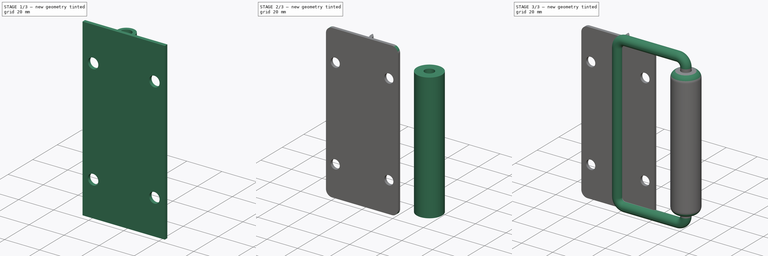
[diagram: build sequence overview — one tinted view per stage of 3, left to right]
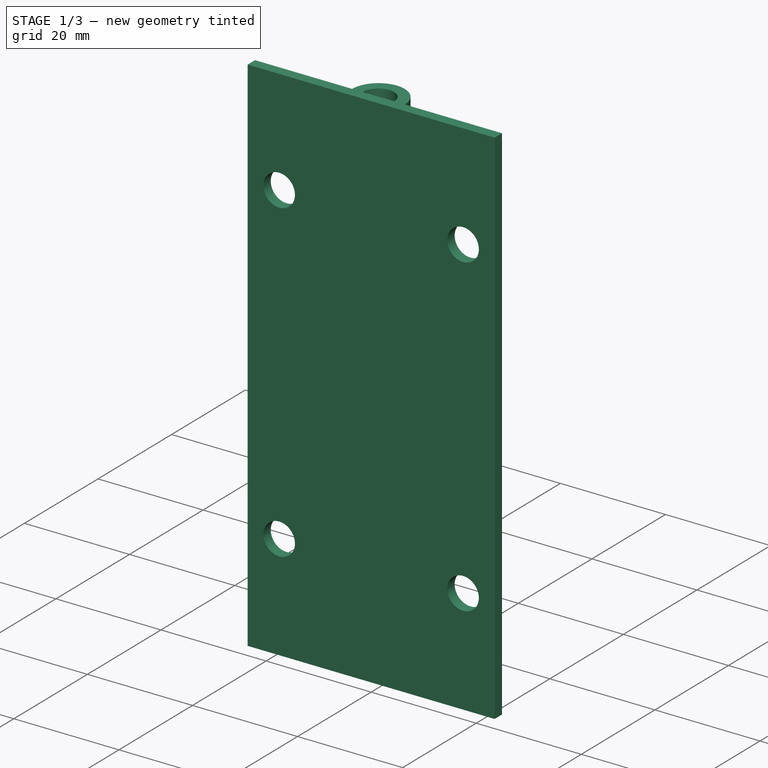
[diagram: stage 1 of 3 — iso view after this stage's code; geometry added in this stage tinted green]
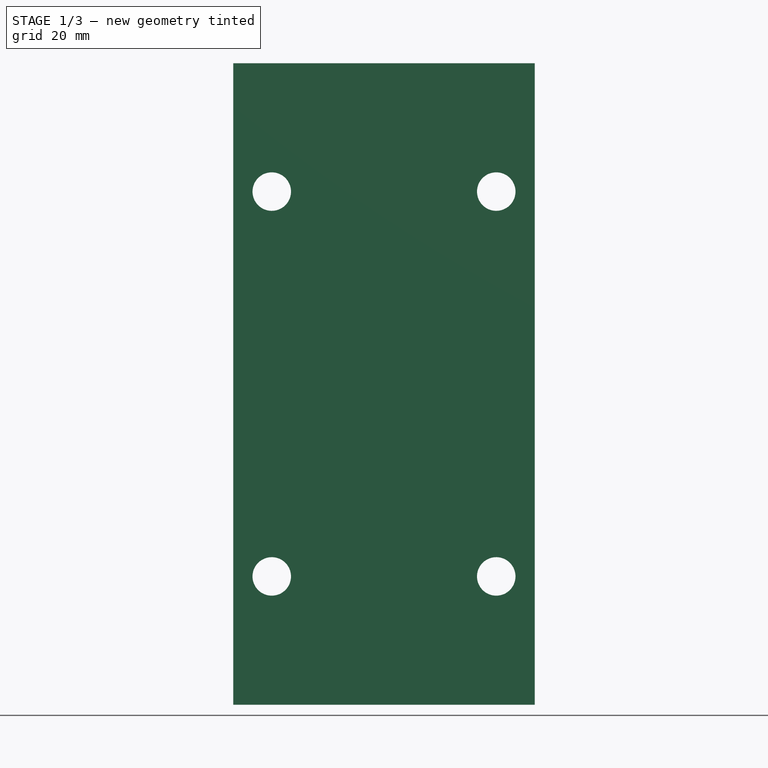
[diagram: stage 1 of 3 — front view after this stage's code; geometry added in this stage tinted green]
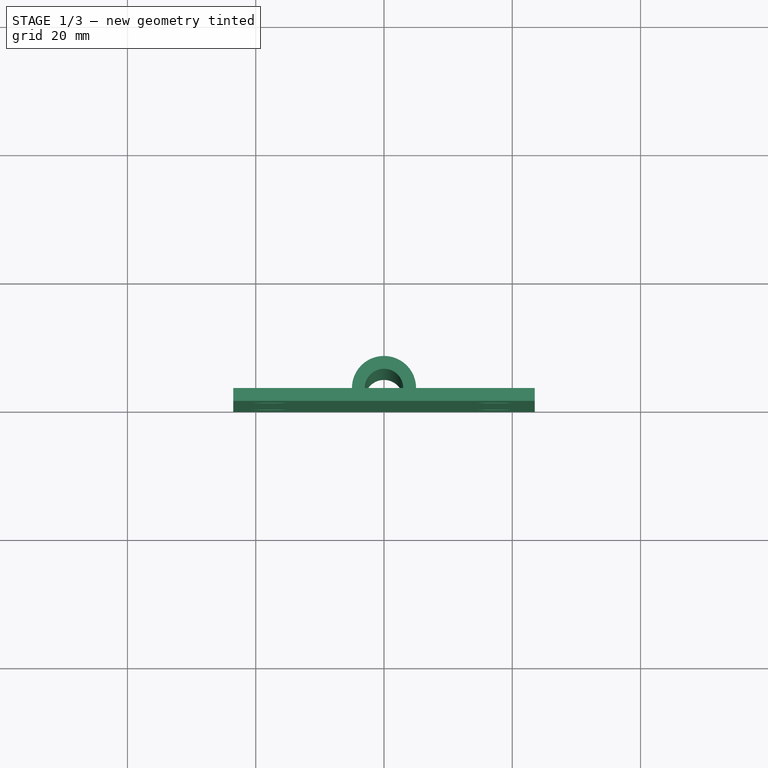
[diagram: stage 1 of 3 — top view after this stage's code; geometry added in this stage tinted green]
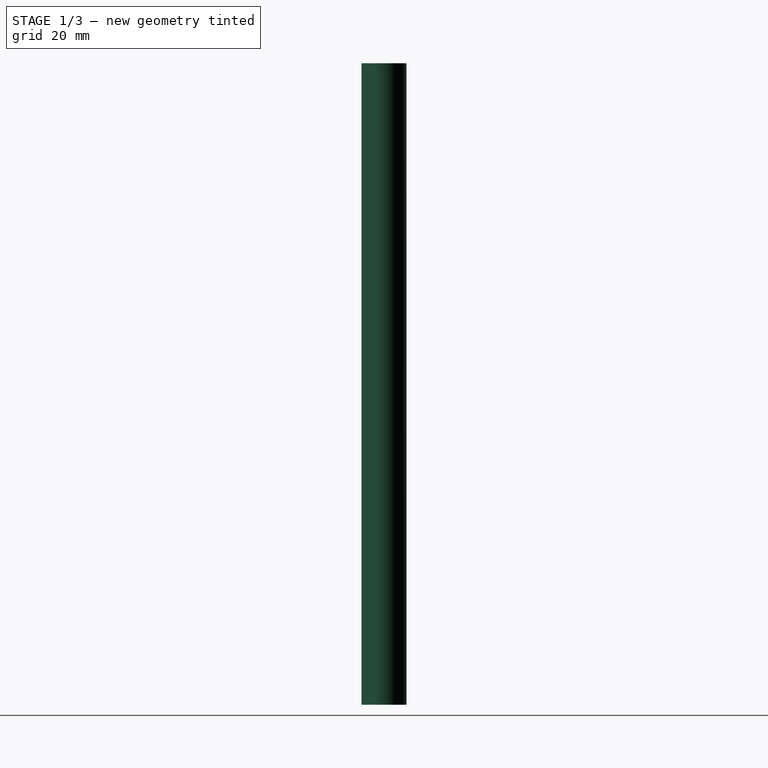
[diagram: stage 1 of 3 — right view after this stage's code; geometry added in this stage tinted green]
FCSTD DOCUMENT  (FreeCAD 1.0R39319 (Git))
Label: Handle__SS-Carry 100mm
License: All rights reserved
LicenseURL: https://en.wikipedia.org/wiki/All_rights_reserved
objects: Sketcher::SketchObject×6, PartDesign::Body×3, PartDesign::Pad×2, PartDesign::Fillet×2, PartDesign::Pocket×2, PartDesign::AdditivePipe×1
note: 36 computed .brp shape members not serialized (recipe doc carries the construction recipe); baked Part::Feature solids carry a one-line shape summary decoded from their .brp

FEATURE [PartDesign::Body] Body002
  AllowCompound = false
  Group = -> [Sketch003,Pad001,Fillet]
  Origin = -> Origin002
  Placement = pos=(0,-3,0) rot=(0,0,-1;0.436332rad)
  Tip = -> Fillet
FEATURE [Sketcher::SketchObject] Sketch
  ArcFitTolerance = 1e-06
  AttachmentSupport = -> [XY_Plane]
  FullyConstrained = true
  MakeInternals = false
  MapMode = 5
  sketch-geometry (8):
    g0: LineSegment StartX=-23.5 StartY=0 StartZ=0 EndX=23.5 EndY=0 EndZ=0
    g1: LineSegment StartX=23.5 StartY=0 StartZ=0 EndX=23.5 EndY=2 EndZ=0
    g2: LineSegment StartX=-23.5 StartY=2 StartZ=0 EndX=-23.5 EndY=0 EndZ=0
    g3: ArcOfCircle CenterX=0 CenterY=2 CenterZ=0 NormalX=0 NormalY=0 NormalZ=1 AngleXU=0 Radius=5 StartAngle=0 EndAngle=3.14159
    g4: LineSegment StartX=5 StartY=2 StartZ=0 EndX=23.5 EndY=2 EndZ=0
    g5: LineSegment StartX=-5 StartY=2 StartZ=0 EndX=-23.5 EndY=2 EndZ=0
    g6: LineSegment StartX=-3 StartY=2 StartZ=0 EndX=3 EndY=2 EndZ=0
    g7: ArcOfCircle CenterX=0 CenterY=2 CenterZ=0 NormalX=0 NormalY=0 NormalZ=1 AngleXU=0 Radius=3 StartAngle=0 EndAngle=3.14159
  constraints (24):
    c: Coincident(g0,g1)
    c: Coincident(g2,g0)
    c: Horizontal(g0)
    c: Vertical(g1)
    c: Vertical(g2)
    c: PointOnObject(g0,g-1)
    c: Symmetric(g1,g2,g-2)
    c: DistanceY(g2,g2) = 2
    c: DistanceX(g0,g0) = 47
    c: PointOnObject(g3,g-2)
    c: Coincident(g4,g3)
    c: Coincident(g4,g1)
    c: Horizontal(g4)
    c: Coincident(g5,g3)
    c: Coincident(g5,g2)
    c: Horizontal(g5)
    c: Radius(g3) = 5
    c: Horizontal(g6)
    c: Horizontal(g3,g3)
    c: PointOnObject(g7,g6)
    c: Coincident(g7,g6)
    c: Coincident(g7,g6)
    c: Radius(g7) = 3
    c: Coincident(g7,g3)
FEATURE [PartDesign::Pad] Pad
  Direction = (0,0,1)
  Length = 100
  Length2 = 10
  Midplane = true
  Profile = -> Sketch
  ReferenceAxis = -> Sketch [N_Axis]
  Refine = true
  Suppressed = false
  Type = 0
FEATURE [Sketcher::SketchObject] Sketch004
  ArcFitTolerance = 1e-06
  AttachmentSupport = -> [Pad]
  ExternalGeometry = -> [Pad]
  FullyConstrained = true
  MakeInternals = false
  MapMode = 5
  Placement = pos=(0,2,0) rot=(0,0.707107,0.707107;3.14159rad)
  sketch-geometry (8):
    g0: Circle CenterX=17.5 CenterY=30 CenterZ=0 NormalX=0 NormalY=0 NormalZ=1 AngleXU=0 Radius=3
    g1: Circle CenterX=-17.5 CenterY=30 CenterZ=0 NormalX=0 NormalY=0 NormalZ=1 AngleXU=0 Radius=3
    g2: Circle CenterX=17.5 CenterY=-30 CenterZ=0 NormalX=0 NormalY=0 NormalZ=1 AngleXU=0 Radius=3
    g3: Circle CenterX=-17.5 CenterY=-30 CenterZ=0 NormalX=0 NormalY=0 NormalZ=1 AngleXU=0 Radius=3
    g4: LineSegment [constr] StartX=-17.5 StartY=30 StartZ=0 EndX=-17.5 EndY=-30 EndZ=0
    g5: LineSegment [constr] StartX=-17.5 StartY=-30 StartZ=0 EndX=17.5 EndY=-30 EndZ=0
    g6: LineSegment [constr] StartX=17.5 StartY=-30 StartZ=0 EndX=17.5 EndY=30 EndZ=0
    g7: LineSegment [constr] StartX=17.5 StartY=30 StartZ=0 EndX=-17.5 EndY=30 EndZ=0
  constraints (19):
    c: Coincident(g4,g5)
    c: Coincident(g5,g6)
    c: Coincident(g6,g7)
    c: Coincident(g7,g4)
    c: Vertical(g4)
    c: Vertical(g6)
    c: Horizontal(g5)
    c: Horizontal(g7)
    c: Coincident(g4,g1)
    c: Coincident(g5,g2)
    c: Coincident(g0,g6)
    c: Coincident(g3,g4)
    c: Symmetric(g2,g1,g-1)
    c: Equal(g0,g2)
    c: Equal(g2,g3)
    c: Equal(g3,g1)
    c: Diameter(g0) = 6
    c: DistanceY(g6,g6) = 60
    c: DistanceX(g7,g7) = 35
FEATURE [PartDesign::Pocket] Pocket
  BaseFeature = -> Pad
  Direction = (0,-1,2e-16)
  Length = 5
  Length2 = 5
  Profile = -> Sketch004
  ReferenceAxis = -> Sketch004 [N_Axis]
  Refine = true
  Suppressed = false
  Type = 2
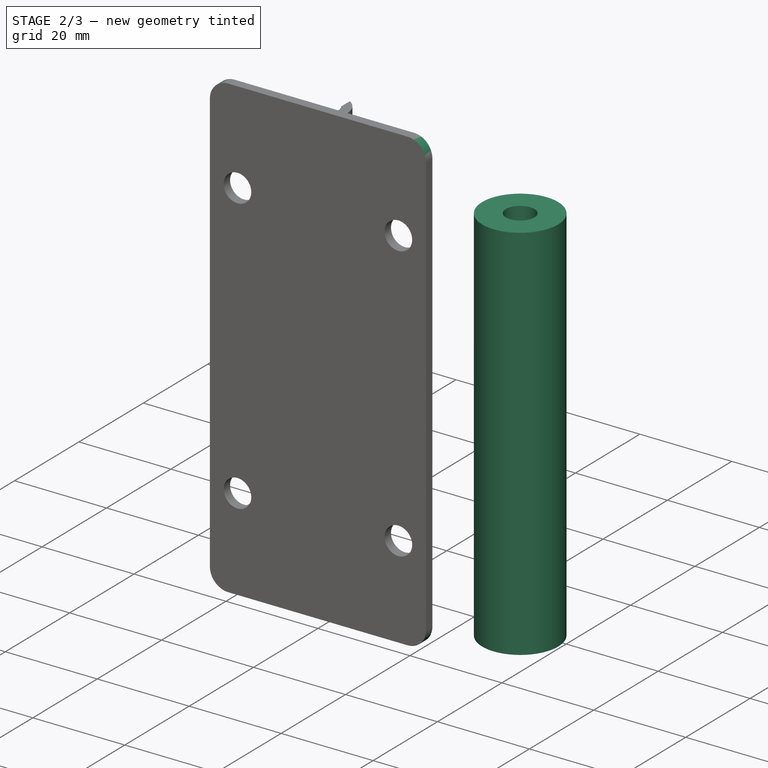
[diagram: stage 2 of 3 — iso view after this stage's code; geometry added in this stage tinted green]
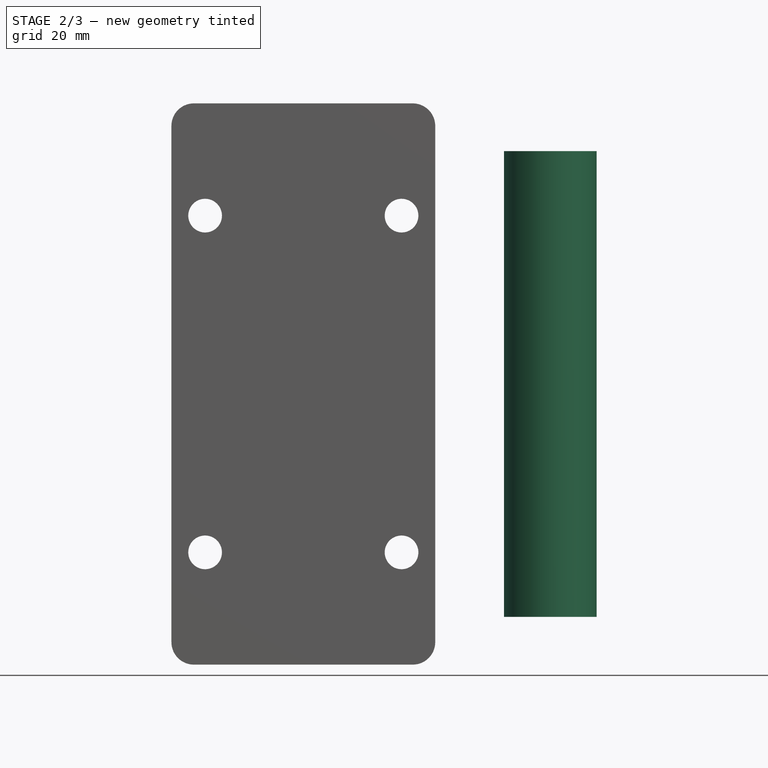
[diagram: stage 2 of 3 — front view after this stage's code; geometry added in this stage tinted green]
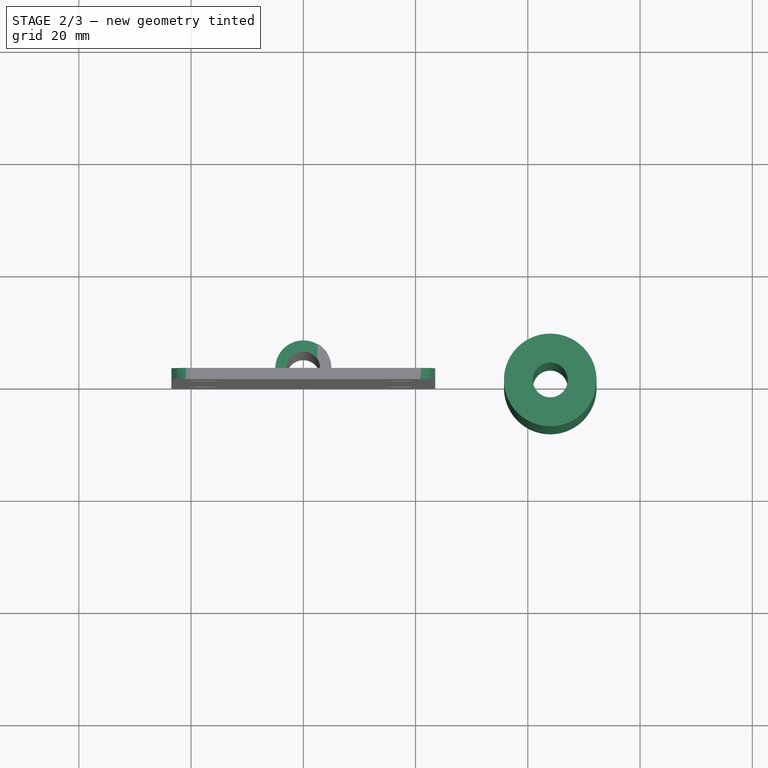
[diagram: stage 2 of 3 — top view after this stage's code; geometry added in this stage tinted green]
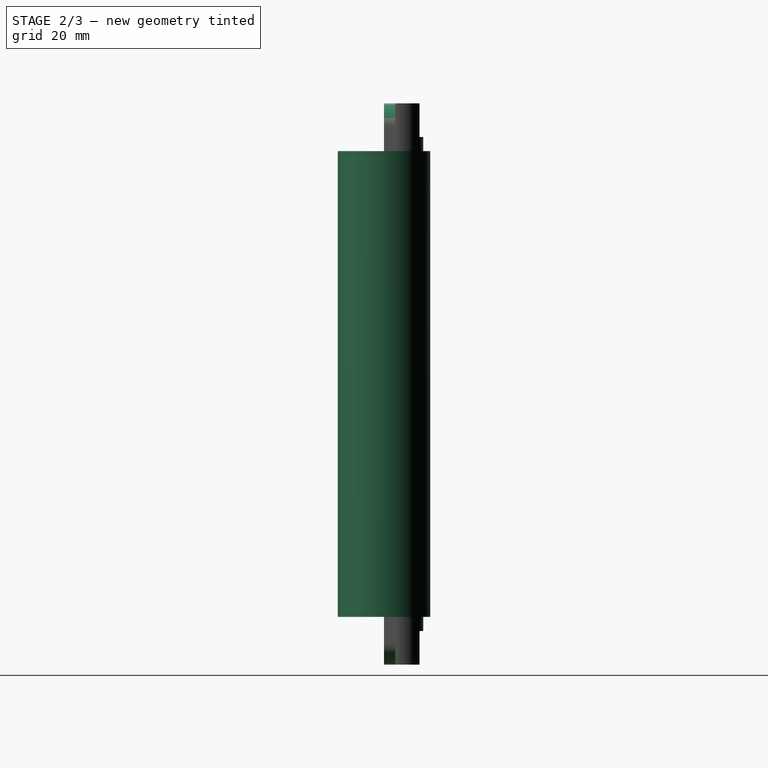
[diagram: stage 2 of 3 — right view after this stage's code; geometry added in this stage tinted green]
FEATURE [PartDesign::Body] Body001
  AllowCompound = false
  Group = -> [Sketch001,Sketch002,AdditivePipe]
  Origin = -> Origin001
  Placement = pos=(-1.8e-15,-3,0) rot=(0,0,-1;0.436332rad)
  Tip = -> AdditivePipe
FEATURE [Sketcher::SketchObject] Sketch003
  ArcFitTolerance = 1e-06
  AttachmentSupport = -> [XY_Plane002]
  FullyConstrained = true
  MakeInternals = false
  MapMode = 5
  sketch-geometry (2):
    g0: Circle CenterX=44 CenterY=0 CenterZ=0 NormalX=0 NormalY=0 NormalZ=1 AngleXU=0 Radius=8.25
    g1: Circle CenterX=44 CenterY=0 CenterZ=0 NormalX=0 NormalY=0 NormalZ=1 AngleXU=0 Radius=3.1
  constraints (5):
    c: PointOnObject(g0,g-1)
    c: DistanceX(g-1,g0) = 44
    c: Diameter(g0) = 16.5
    c: Coincident(g1,g0)
    c: Diameter(g1) = 6.2
FEATURE [PartDesign::Pad] Pad001
  Direction = (0,0,1)
  Length = 83
  Length2 = 10
  Midplane = true
  Profile = -> Sketch003
  ReferenceAxis = -> Sketch003 [N_Axis]
  Refine = true
  Suppressed = false
  Type = 0
FEATURE [Sketcher::SketchObject] Sketch005
  ArcFitTolerance = 1e-06
  AttachmentSupport = -> [Pocket]
  ExternalGeometry = -> [Pocket]
  FullyConstrained = true
  MakeInternals = false
  MapMode = 5
  Placement = pos=(0,2,0) rot=(0,0.707107,0.707107;3.14159rad)
  sketch-geometry (8):
    g0: LineSegment StartX=23.5 StartY=50 StartZ=0 EndX=-2.5 EndY=50 EndZ=0
    g1: LineSegment StartX=-2.5 StartY=50 StartZ=0 EndX=-2.5 EndY=44 EndZ=0
    g2: LineSegment StartX=-2.5 StartY=44 StartZ=0 EndX=23.5 EndY=44 EndZ=0
    g3: LineSegment StartX=23.5 StartY=44 StartZ=0 EndX=23.5 EndY=50 EndZ=0
    g4: LineSegment StartX=23.5 StartY=-50 StartZ=0 EndX=23.5 EndY=-44 EndZ=0
    g5: LineSegment StartX=23.5 StartY=-44 StartZ=0 EndX=-2.5 EndY=-44 EndZ=0
    g6: LineSegment StartX=-2.5 StartY=-44 StartZ=0 EndX=-2.5 EndY=-50 EndZ=0
    g7: LineSegment StartX=-2.5 StartY=-50 StartZ=0 EndX=23.5 EndY=-50 EndZ=0
  constraints (22):
    c: Coincident(g0,g1)
    c: Coincident(g1,g2)
    c: Coincident(g2,g3)
    c: Coincident(g3,g0)
    c: Horizontal(g0)
    c: Horizontal(g2)
    c: Vertical(g1)
    c: Vertical(g3)
    c: Coincident(g0,g-3)
    c: Coincident(g4,g5)
    c: Coincident(g5,g6)
    c: Coincident(g6,g7)
    c: Coincident(g7,g4)
    c: Vertical(g4)
    c: Vertical(g6)
    c: Horizontal(g5)
    c: Horizontal(g7)
    c: Coincident(g4,g-3)
    c: DistanceX(g0,g0) = 26
    c: DistanceY(g3,g3) = 6
    c: Equal(g3,g4)
    c: Equal(g5,g2)
FEATURE [PartDesign::Pocket] Pocket001
  BaseFeature = -> Pocket
  Direction = (0,-1,2e-16)
  Length = 5
  Length2 = 5
  Profile = -> Sketch005
  ReferenceAxis = -> Sketch005 [N_Axis]
  Refine = true
  Reversed = true
  Suppressed = false
  Type = 1
FEATURE [PartDesign::Fillet] Fillet001
  Base = -> Pocket001 [Edge10,Edge17,Edge23,Edge11]
  BaseFeature = -> Pocket001
  Radius = 4
  Refine = true
  SupportTransform = false
  Suppressed = false
  UseAllEdges = false
FEATURE [PartDesign::Body] Body
  AllowCompound = false
  Group = -> [Sketch,Pad,Sketch004,Pocket,Sketch005,Pocket001,Fillet001]
  Origin = -> Origin
  Placement = pos=(0,0,0) rot=(0,0,1;3.14159rad)
  Tip = -> Fillet001
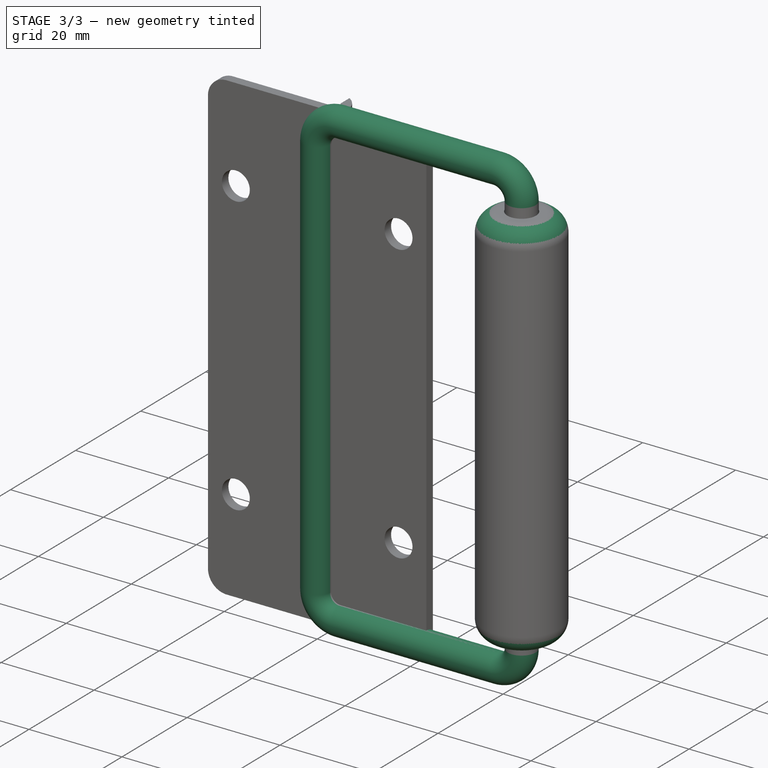
[diagram: stage 3 of 3 — iso view after this stage's code; geometry added in this stage tinted green]
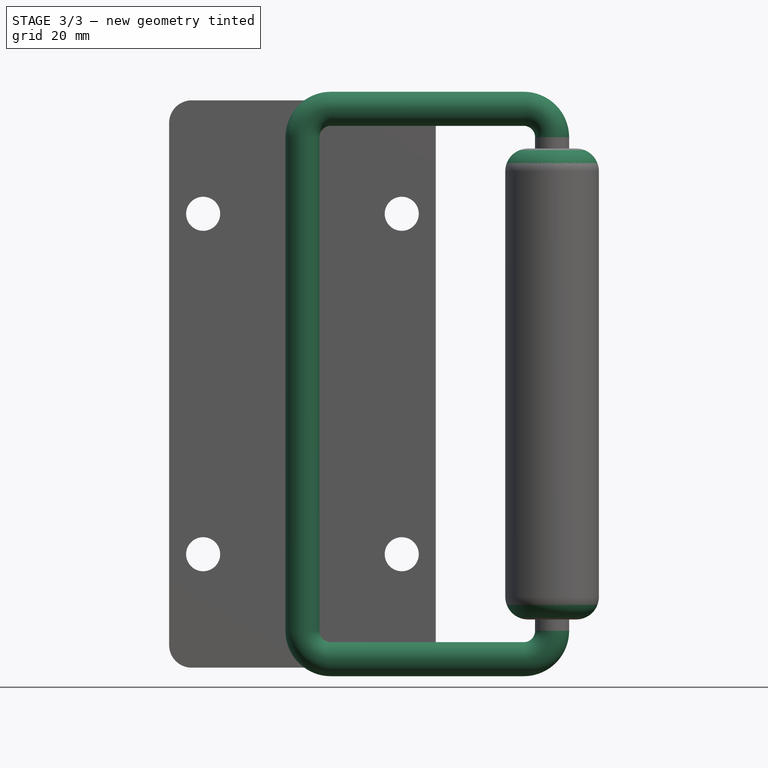
[diagram: stage 3 of 3 — front view after this stage's code; geometry added in this stage tinted green]
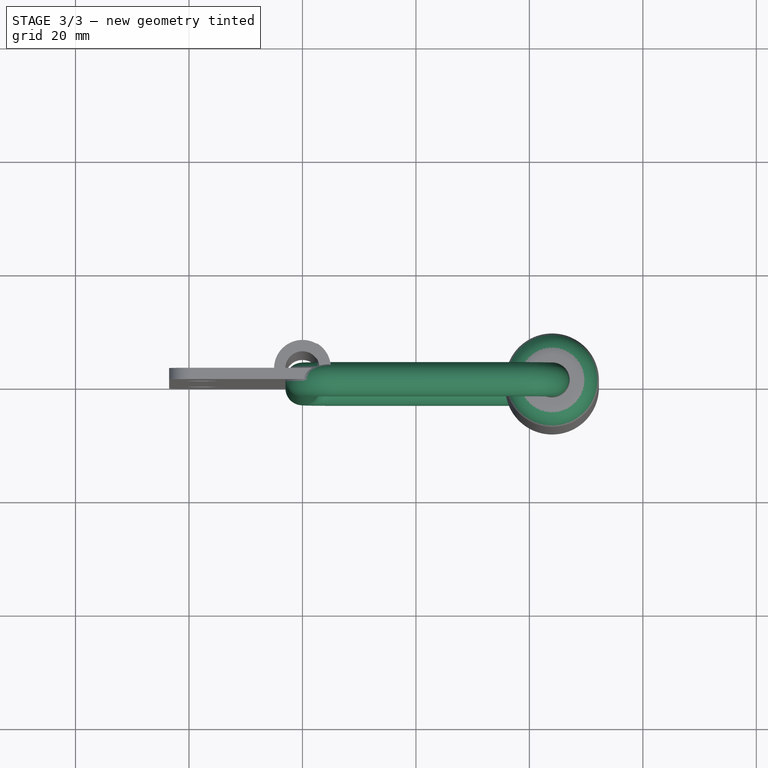
[diagram: stage 3 of 3 — top view after this stage's code; geometry added in this stage tinted green]
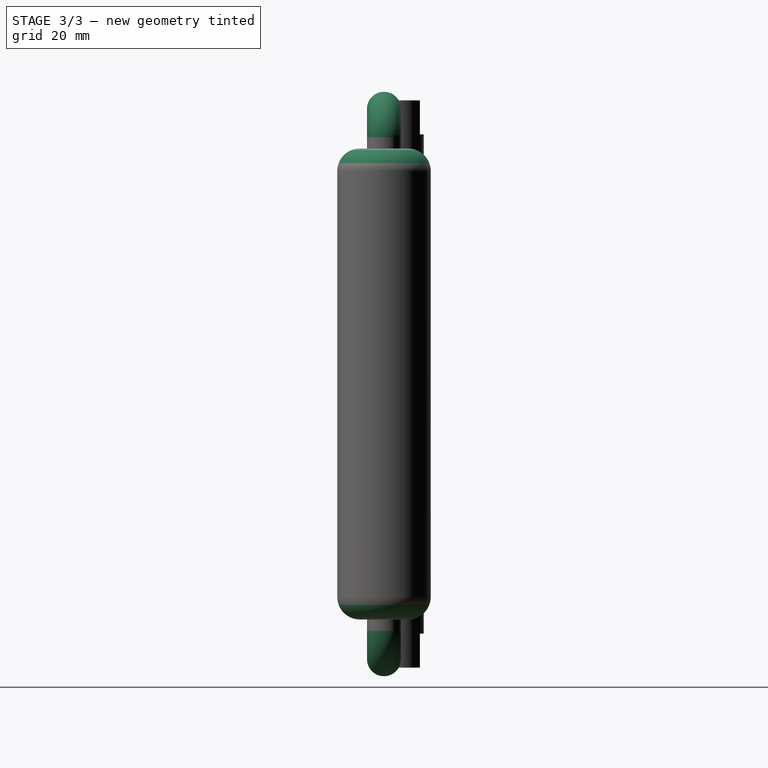
[diagram: stage 3 of 3 — right view after this stage's code; geometry added in this stage tinted green]
FEATURE [Sketcher::SketchObject] Sketch001
  ArcFitTolerance = 1e-06
  AttachmentSupport = -> [XZ_Plane001]
  FullyConstrained = true
  MakeInternals = false
  MapMode = 5
  Placement = pos=(0,0,0) rot=(1,0,0;1.5708rad)
  sketch-geometry (12):
    g0: LineSegment StartX=39 StartY=-48.5 StartZ=0 EndX=5 EndY=-48.5 EndZ=0
    g1: LineSegment StartX=0 StartY=-43.5 StartZ=0 EndX=0 EndY=43.5 EndZ=0
    g2: LineSegment StartX=5 StartY=48.5 StartZ=0 EndX=39 EndY=48.5 EndZ=0
    g3: LineSegment StartX=44 StartY=43.5 StartZ=0 EndX=44 EndY=-43.5 EndZ=0
    g4: ArcOfCircle CenterX=39 CenterY=43.5 CenterZ=0 NormalX=0 NormalY=0 NormalZ=1 AngleXU=0 Radius=5 StartAngle=2e-15 EndAngle=1.5708
    g5: GeomPoint [constr] X=44 Y=48.5 Z=0
    g6: ArcOfCircle CenterX=5 CenterY=43.5 CenterZ=0 NormalX=0 NormalY=0 NormalZ=1 AngleXU=0 Radius=5 StartAngle=1.5708 EndAngle=3.14159
    g7: GeomPoint [constr] X=0 Y=48.5 Z=0
    g8: ArcOfCircle CenterX=5 CenterY=-43.5 CenterZ=0 NormalX=0 NormalY=0 NormalZ=1 AngleXU=0 Radius=5 StartAngle=3.14159 EndAngle=4.71239
    g9: GeomPoint [constr] X=0 Y=-48.5 Z=0
    g10: ArcOfCircle CenterX=39 CenterY=-43.5 CenterZ=0 NormalX=0 NormalY=0 NormalZ=1 AngleXU=0 Radius=5 StartAngle=4.71239 EndAngle=6.28319
    g11: GeomPoint [constr] X=44 Y=-48.5 Z=0
  constraints (27):
    c: Horizontal(g0)
    c: Horizontal(g2)
    c: Vertical(g3)
    c: PointOnObject(g7,g-2)
    c: Symmetric(g9,g7,g-1)
    c: DistanceY(g9,g7) = 97
    c: DistanceX(g7,g5) = 44
    c: PointOnObject(g5,g2)
    c: PointOnObject(g5,g3)
    c: Tangent(g2,g4) = 1.5708
    c: Tangent(g3,g4) = 1.5708
    c: PointOnObject(g7,g1)
    c: PointOnObject(g7,g2)
    c: Tangent(g1,g6) = 1.5708
    c: Tangent(g2,g6) = 1.5708
    c: PointOnObject(g9,g0)
    c: PointOnObject(g9,g1)
    c: Tangent(g0,g8) = 1.5708
    c: Tangent(g1,g8) = 1.5708
    c: PointOnObject(g11,g3)
    c: PointOnObject(g11,g0)
    c: Tangent(g3,g10) = 1.5708
    c: Tangent(g0,g10) = 1.5708
    c: Equal(g10,g8)
    c: Equal(g8,g6)
    c: Equal(g6,g4)
    c: Radius(g4) = 5
FEATURE [Sketcher::SketchObject] Sketch002
  ArcFitTolerance = 1e-06
  AttachmentSupport = -> [XY_Plane001]
  FullyConstrained = true
  MakeInternals = false
  MapMode = 5
  sketch-geometry (1):
    g0: Circle CenterX=0 CenterY=0 CenterZ=0 NormalX=0 NormalY=0 NormalZ=1 AngleXU=0 Radius=3
  constraints (2):
    c: Coincident(g0,g-1)
    c: Diameter(g0) = 6
FEATURE [PartDesign::AdditivePipe] AdditivePipe
  AuxilleryCurvelinear = true
  AuxillerySpineTangent = false
  Binormal = (0,0,0)
  Mode = 0
  Profile = -> Sketch002
  Refine = true
  Spine = -> Sketch001
  SpineTangent = false
  Suppressed = false
  Transformation = 0
  Transition = 0
FEATURE [PartDesign::Fillet] Fillet
  Base = -> Pad001 [Edge3,Edge2]
  BaseFeature = -> Pad001
  Radius = 4
  Refine = true
  SupportTransform = false
  Suppressed = false
  UseAllEdges = false
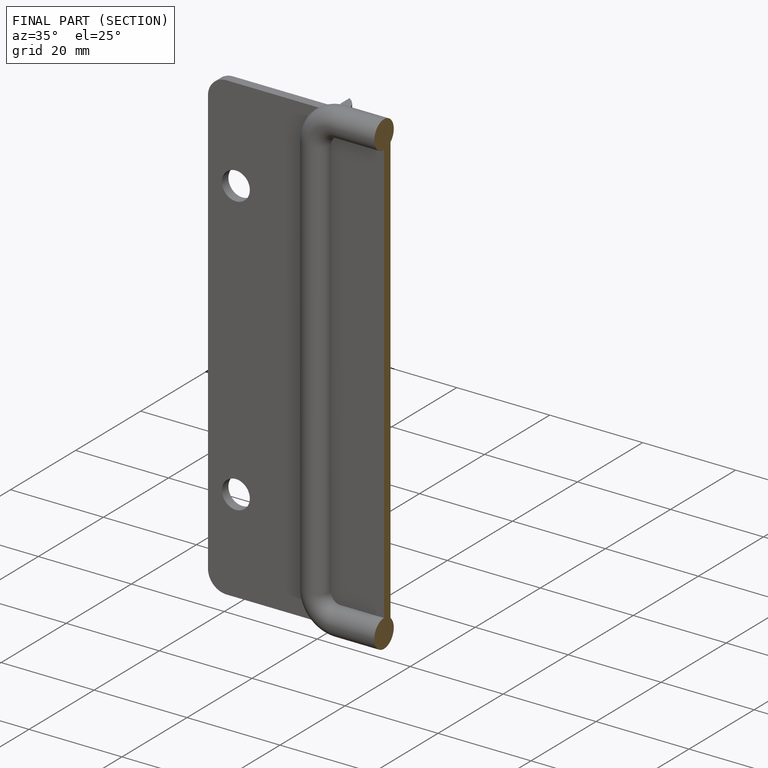
[diagram: finished part — half-section view (interior)]
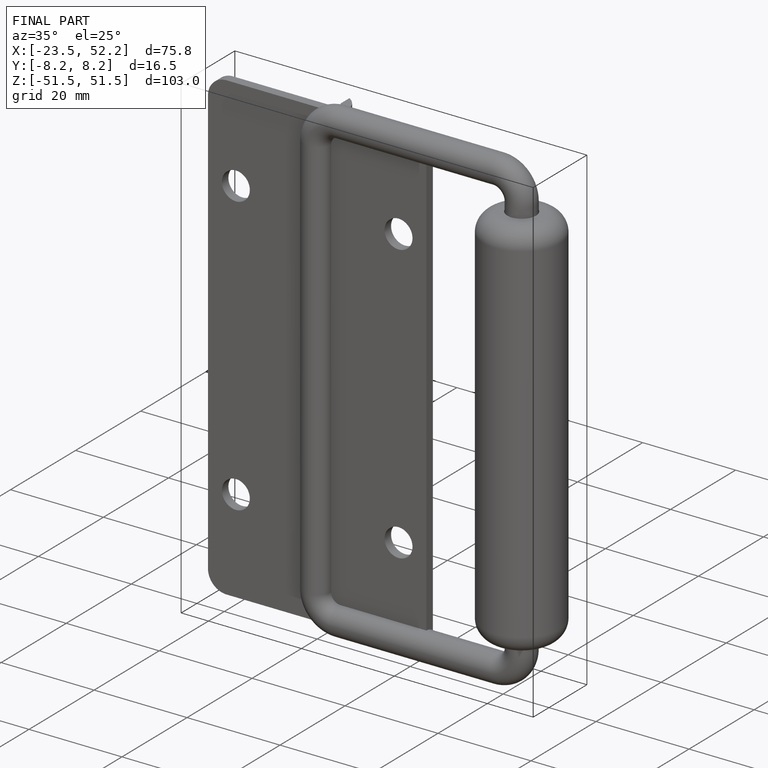
[diagram: finished part — iso view with bounding-box wireframe]
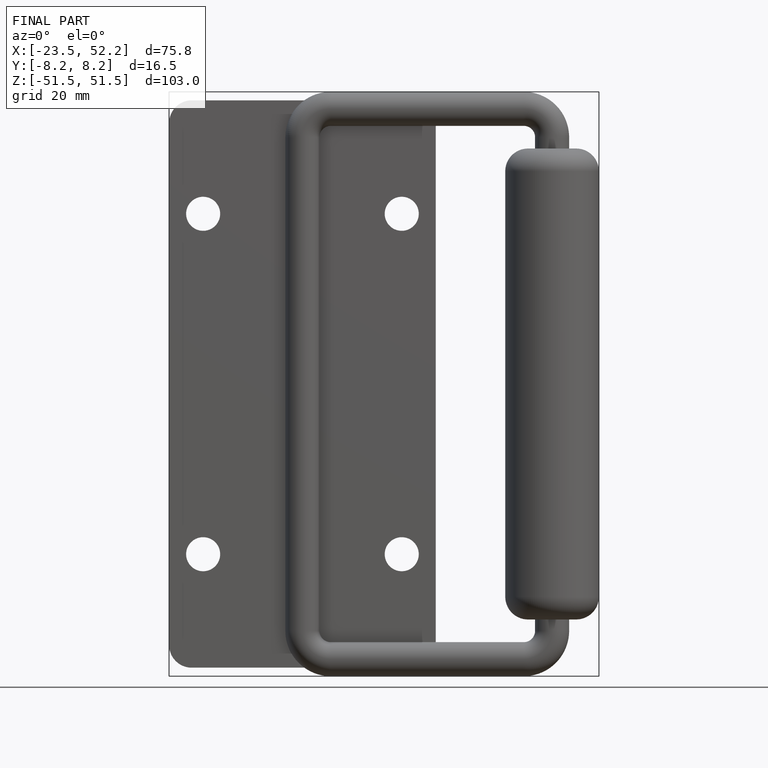
[diagram: finished part — front view with bounding-box wireframe]
